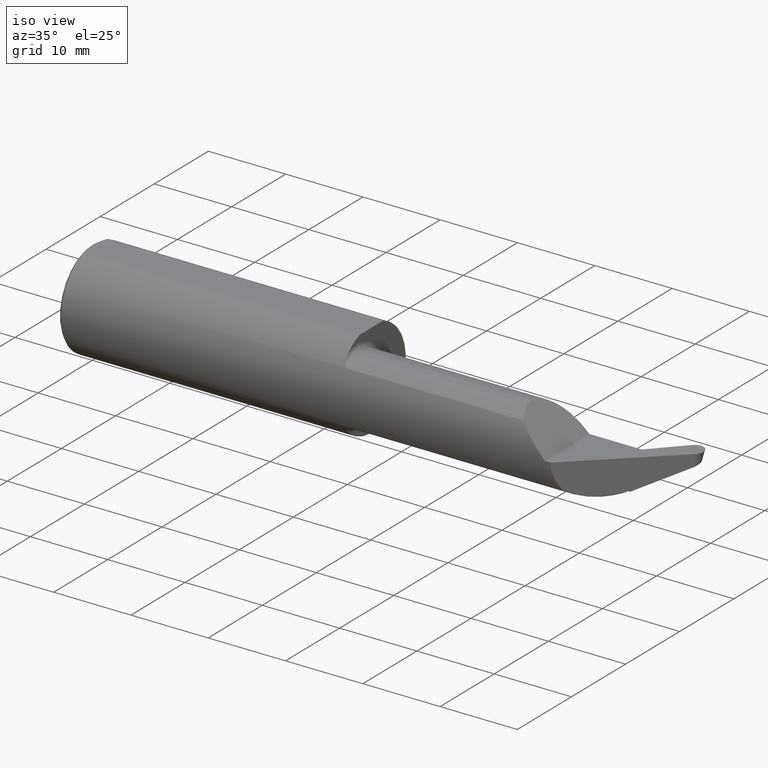
[diagram: clean part render]
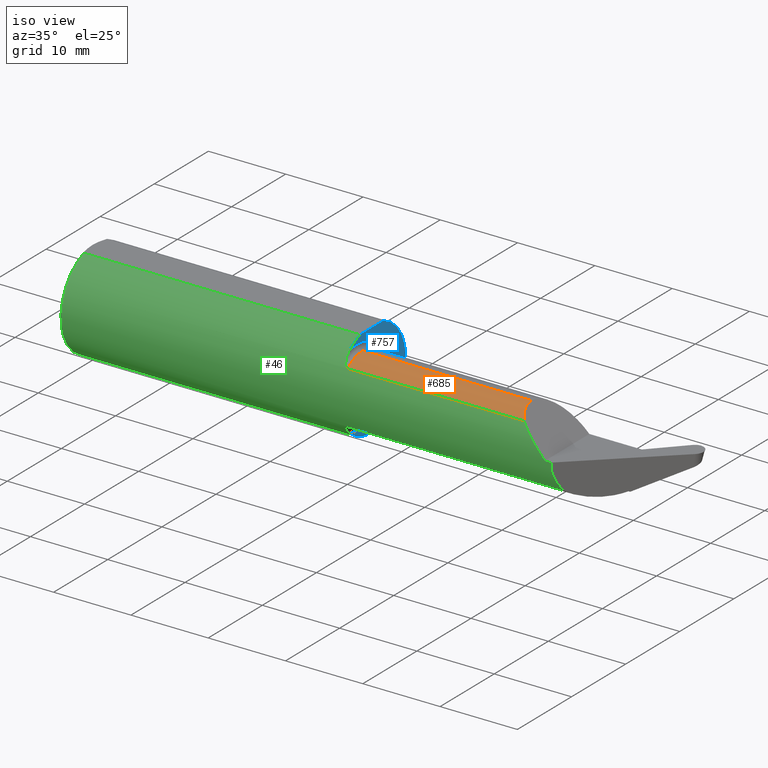
[diagram: same view with three faces highlighted in distinct colors, each labeled with its STEP entity id]
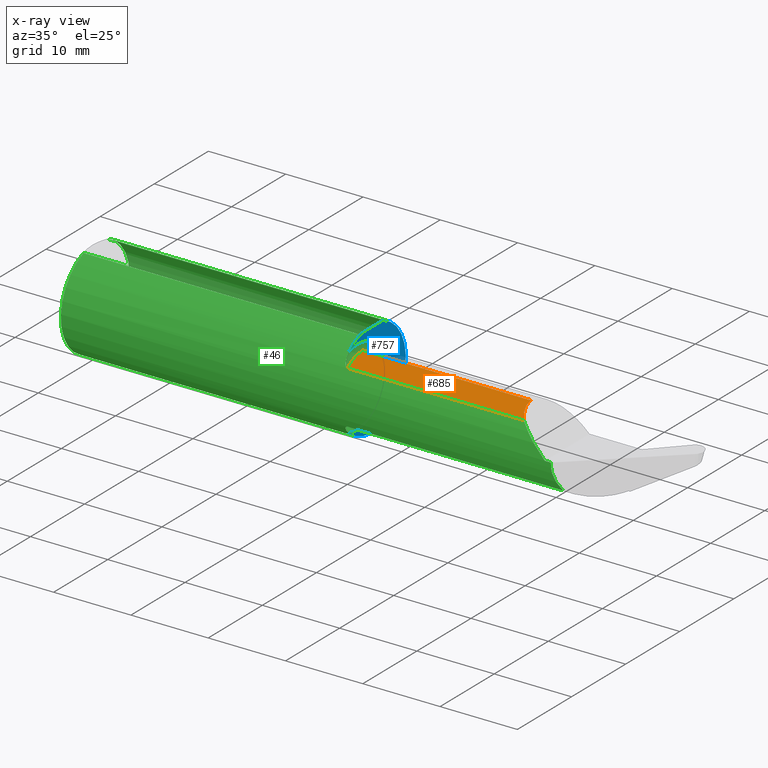
[diagram: x-ray of the same camera — body ghosted, the three highlighted faces saturated]
A machine part, iso view with three faces highlighted in distinct colors.
The next image is the same camera in x-ray (body ghosted, the three faces saturated) — at least one of them is partly hidden behind the body in this view.
Their STEP definitions:

[orange] entity #685 — the highlighted cylindrical surface (partial cylindrical patch) has radius 4.4196 mm, axis along (-1, -0, -0).
#25 = DIRECTION ( 'NONE',  ( 1.000000000000000000, 0.000000000000000000, 0.000000000000000000 ) ) ;
#70 = CARTESIAN_POINT ( 'NONE',  ( 1.446999999999999842, -0.09985000000000000819, 0.1739999999999987390 ) ) ;
#76 = CARTESIAN_POINT ( 'NONE',  ( 2.319901235500922088, -0.1793692571805432512, 0.1600987644990802261 ) ) ;
#103 = CARTESIAN_POINT ( 'NONE',  ( 2.097104927754681825, -0.2109115923885839516, 0.1339452227446421839 ) ) ;
#108 = DIRECTION ( 'NONE',  ( -1.000000000000000000, -0.000000000000000000, -0.000000000000000000 ) ) ;
#141 = CARTESIAN_POINT ( 'NONE',  ( 2.346054777255360158, -0.2109115923885840072, 0.1339452227446421284 ) ) ;
#156 = LINE ( 'NONE', #103, #694 ) ;
#161 = EDGE_CURVE ( 'NONE', #590, #360, #156, .T. ) ;
#211 = ORIENTED_EDGE ( 'NONE', *, *, #671, .T. ) ;
#252 = CARTESIAN_POINT ( 'NONE',  ( 1.446999999999999842, -0.09985000000000000819, 0.000000000000000000 ) ) ;
#283 = EDGE_CURVE ( 'NONE', #590, #367, #705, .T. ) ;
#295 = VERTEX_POINT ( 'NONE', #512 ) ;
#298 = VECTOR ( 'NONE', #542, 39.37007874015748143 ) ;
#299 = CARTESIAN_POINT ( 'NONE',  ( 1.421999999999999931, -0.09985000000000000819, 0.000000000000000000 ) ) ;
#356 =( BOUNDED_CURVE ( )  B_SPLINE_CURVE ( 3, ( #528, #76, #776, #524 ),
 .UNSPECIFIED., .F., .T. ) 
 B_SPLINE_CURVE_WITH_KNOTS ( ( 4, 4 ),
 ( 5.590916938044846241, 6.283185307179586232 ),
 .UNSPECIFIED. ) 
 CURVE ( )  GEOMETRIC_REPRESENTATION_ITEM ( )  RATIONAL_B_SPLINE_CURVE ( ( 1.000000000000000000, 0.9604608466326333138, 0.9604608466326333138, 1.000000000000000000 ) ) 
 REPRESENTATION_ITEM ( '' )  );
#360 = VERTEX_POINT ( 'NONE', #141 ) ;
#367 = VERTEX_POINT ( 'NONE', #70 ) ;
#370 = EDGE_CURVE ( 'NONE', #360, #295, #356, .T. ) ;
#421 = FACE_OUTER_BOUND ( 'NONE', #676, .T. ) ;
#439 = AXIS2_PLACEMENT_3D ( 'NONE', #252, #500, #502 ) ;
#490 = DIRECTION ( 'NONE',  ( 0.000000000000000000, 0.000000000000000000, 1.000000000000000000 ) ) ;
#496 = CARTESIAN_POINT ( 'NONE',  ( 1.446999999999999842, -0.2109115923885835353, 0.1339452227446417121 ) ) ;
#500 = DIRECTION ( 'NONE',  ( -1.000000000000000000, -0.000000000000000000, -0.000000000000000000 ) ) ;
#502 = DIRECTION ( 'NONE',  ( 0.000000000000000000, 0.000000000000000000, 1.000000000000000000 ) ) ;
#512 = CARTESIAN_POINT ( 'NONE',  ( 2.306000000000003602, -0.09985000000000000819, 0.1739999999999993496 ) ) ;
#524 = CARTESIAN_POINT ( 'NONE',  ( 2.306000000000003602, -0.09985000000000000819, 0.1739999999999993496 ) ) ;
#528 = CARTESIAN_POINT ( 'NONE',  ( 2.346054777255360158, -0.2109115923885840072, 0.1339452227446421284 ) ) ;
#542 = DIRECTION ( 'NONE',  ( -1.000000000000000000, -0.000000000000000000, -0.000000000000000000 ) ) ;
#577 = AXIS2_PLACEMENT_3D ( 'NONE', #299, #108, #490 ) ;
#590 = VERTEX_POINT ( 'NONE', #496 ) ;
#629 = ORIENTED_EDGE ( 'NONE', *, *, #161, .T. ) ;
#671 = EDGE_CURVE ( 'NONE', #295, #367, #675, .T. ) ;
#675 = LINE ( 'NONE', #741, #298 ) ;
#676 = EDGE_LOOP ( 'NONE', ( #690, #211, #804, #629 ) ) ;
#684 = CYLINDRICAL_SURFACE ( 'NONE', #577, 0.1739999999999993496 ) ;
#685 = ADVANCED_FACE ( 'NONE', ( #421 ), #684, .T. ) ;
#690 = ORIENTED_EDGE ( 'NONE', *, *, #370, .T. ) ;
#694 = VECTOR ( 'NONE', #25, 39.37007874015748143 ) ;
#705 = CIRCLE ( 'NONE', #439, 0.1739999999999987390 ) ;
#741 = CARTESIAN_POINT ( 'NONE',  ( 1.421999999999999931, -0.09985000000000000819, 0.1739999999999993496 ) ) ;
#776 = CARTESIAN_POINT ( 'NONE',  ( 2.306000000000003158, -0.1408247075240024737, 0.1739999999999993219 ) ) ;
#804 = ORIENTED_EDGE ( 'NONE', *, *, #283, .F. ) ;

[blue] entity #757 — the highlighted planar face has unit normal (1, 0, 0).
#6 = DIRECTION ( 'NONE',  ( 1.000000000000000000, 0.000000000000000000, 0.000000000000000000 ) ) ;
#23 = CARTESIAN_POINT ( 'NONE',  ( 1.421999999999999931, -0.1642165498247395994, -0.1883028073706252692 ) ) ;
#26 = ORIENTED_EDGE ( 'NONE', *, *, #461, .T. ) ;
#42 = CARTESIAN_POINT ( 'NONE',  ( 1.421999999999999931, -0.09984999999999999432, -0.1989999999999987612 ) ) ;
#48 = ORIENTED_EDGE ( 'NONE', *, *, #219, .T. ) ;
#51 = CARTESIAN_POINT ( 'NONE',  ( 1.421999999999999931, 0.08526722699841957076, 0.2348499999999999477 ) ) ;
#102 = CIRCLE ( 'NONE', #484, 0.2498499999999999888 ) ;
#128 = CARTESIAN_POINT ( 'NONE',  ( 1.421999999999999931, 0.000000000000000000, 0.000000000000000000 ) ) ;
#137 = DIRECTION ( 'NONE',  ( -1.000000000000000000, -0.000000000000000000, -0.000000000000000000 ) ) ;
#158 = VERTEX_POINT ( 'NONE', #401 ) ;
#164 = VERTEX_POINT ( 'NONE', #231 ) ;
#165 = DIRECTION ( 'NONE',  ( 1.000000000000000000, 0.000000000000000000, 0.000000000000000000 ) ) ;
#175 = CIRCLE ( 'NONE', #184, 0.1989999999999987612 ) ;
#184 = AXIS2_PLACEMENT_3D ( 'NONE', #220, #597, #730 ) ;
#186 = DIRECTION ( 'NONE',  ( 0.000000000000000000, 0.000000000000000000, 1.000000000000000000 ) ) ;
#202 = ORIENTED_EDGE ( 'NONE', *, *, #511, .T. ) ;
#218 = AXIS2_PLACEMENT_3D ( 'NONE', #371, #6, #713 ) ;
#219 = EDGE_CURVE ( 'NONE', #158, #667, #175, .T. ) ;
#220 = CARTESIAN_POINT ( 'NONE',  ( 1.421999999999999931, -0.09985000000000000819, 0.000000000000000000 ) ) ;
#229 = CIRCLE ( 'NONE', #570, 0.1989999999999987612 ) ;
#231 = CARTESIAN_POINT ( 'NONE',  ( 1.421999999999999931, -0.08526722699841958464, 0.2348499999999999477 ) ) ;
#240 = DIRECTION ( 'NONE',  ( 0.000000000000000000, -1.000000000000000000, 0.000000000000000000 ) ) ;
#244 = AXIS2_PLACEMENT_3D ( 'NONE', #736, #137, #796 ) ;
#251 = EDGE_CURVE ( 'NONE', #164, #437, #493, .T. ) ;
#256 = EDGE_CURVE ( 'NONE', #667, #347, #229, .T. ) ;
#262 = FACE_OUTER_BOUND ( 'NONE', #794, .T. ) ;
#270 = AXIS2_PLACEMENT_3D ( 'NONE', #128, #635, #702 ) ;
#271 = VERTEX_POINT ( 'NONE', #51 ) ;
#292 = CARTESIAN_POINT ( 'NONE',  ( 1.421999999999999931, 0.000000000000000000, 0.000000000000000000 ) ) ;
#300 = ORIENTED_EDGE ( 'NONE', *, *, #251, .T. ) ;
#301 = DIRECTION ( 'NONE',  ( 0.000000000000000000, 0.000000000000000000, -1.000000000000000000 ) ) ;
#317 = CIRCLE ( 'NONE', #244, 0.1989999999999987612 ) ;
#347 = VERTEX_POINT ( 'NONE', #23 ) ;
#366 = EDGE_CURVE ( 'NONE', #437, #158, #317, .T. ) ;
#371 = CARTESIAN_POINT ( 'NONE',  ( 1.421999999999999931, 0.09914999999999873914, 0.000000000000000000 ) ) ;
#373 = DIRECTION ( 'NONE',  ( -1.000000000000000000, -0.000000000000000000, -0.000000000000000000 ) ) ;
#401 = CARTESIAN_POINT ( 'NONE',  ( 1.421999999999999931, -0.09985000000000000819, 0.1989999999999987612 ) ) ;
#423 = CARTESIAN_POINT ( 'NONE',  ( 1.421999999999999931, 0.1499999999999999944, 0.2348499999999999477 ) ) ;
#437 = VERTEX_POINT ( 'NONE', #670 ) ;
#461 = EDGE_CURVE ( 'NONE', #347, #271, #102, .T. ) ;
#484 = AXIS2_PLACEMENT_3D ( 'NONE', #292, #165, #301 ) ;
#493 = CIRCLE ( 'NONE', #270, 0.2498499999999999888 ) ;
#511 = EDGE_CURVE ( 'NONE', #271, #164, #608, .T. ) ;
#568 = CARTESIAN_POINT ( 'NONE',  ( 1.421999999999999931, -0.09985000000000000819, 0.000000000000000000 ) ) ;
#570 = AXIS2_PLACEMENT_3D ( 'NONE', #568, #373, #186 ) ;
#597 = DIRECTION ( 'NONE',  ( -1.000000000000000000, -0.000000000000000000, -0.000000000000000000 ) ) ;
#608 = LINE ( 'NONE', #423, #695 ) ;
#635 = DIRECTION ( 'NONE',  ( 1.000000000000000000, 0.000000000000000000, 0.000000000000000000 ) ) ;
#667 = VERTEX_POINT ( 'NONE', #42 ) ;
#670 = CARTESIAN_POINT ( 'NONE',  ( 1.421999999999999931, -0.1642165498247395994, 0.1883028073706252692 ) ) ;
#695 = VECTOR ( 'NONE', #240, 39.37007874015748143 ) ;
#702 = DIRECTION ( 'NONE',  ( 0.000000000000000000, 0.000000000000000000, -1.000000000000000000 ) ) ;
#713 = DIRECTION ( 'NONE',  ( 0.000000000000000000, 0.000000000000000000, -1.000000000000000000 ) ) ;
#730 = DIRECTION ( 'NONE',  ( 0.000000000000000000, 0.000000000000000000, 1.000000000000000000 ) ) ;
#736 = CARTESIAN_POINT ( 'NONE',  ( 1.421999999999999931, -0.09985000000000000819, 0.000000000000000000 ) ) ;
#754 = PLANE ( 'NONE',  #218 ) ;
#757 = ADVANCED_FACE ( 'NONE', ( #262 ), #754, .T. ) ;
#794 = EDGE_LOOP ( 'NONE', ( #26, #202, #300, #829, #48, #820 ) ) ;
#796 = DIRECTION ( 'NONE',  ( 0.000000000000000000, 0.000000000000000000, 1.000000000000000000 ) ) ;
#820 = ORIENTED_EDGE ( 'NONE', *, *, #256, .T. ) ;
#829 = ORIENTED_EDGE ( 'NONE', *, *, #366, .T. ) ;

[green] entity #46 — the highlighted cylindrical surface (partial cylindrical patch) has radius 6.3462 mm, axis along (-1, -0, -0).
#2 = CARTESIAN_POINT ( 'NONE',  ( 2.508211166450760476, -0.2498500000000000443, -0.04776250763339680988 ) ) ;
#5 = AXIS2_PLACEMENT_3D ( 'NONE', #478, #603, #557 ) ;
#8 = CARTESIAN_POINT ( 'NONE',  ( 1.422000000000000597, -0.1692143377402382520, 0.1839442983303241075 ) ) ;
#15 = ORIENTED_EDGE ( 'NONE', *, *, #763, .T. ) ;
#17 = CARTESIAN_POINT ( 'NONE',  ( 1.439579013400958729, -0.2089922484211655385, 0.1369264698045204454 ) ) ;
#23 = CARTESIAN_POINT ( 'NONE',  ( 1.421999999999999931, -0.1642165498247395994, -0.1883028073706252692 ) ) ;
#25 = DIRECTION ( 'NONE',  ( 1.000000000000000000, 0.000000000000000000, 0.000000000000000000 ) ) ;
#29 = CARTESIAN_POINT ( 'NONE',  ( 2.480000000000000426, -0.2498499999999999888, -5.549066237130534971E-17 ) ) ;
#39 = LINE ( 'NONE', #489, #442 ) ;
#45 = CARTESIAN_POINT ( 'NONE',  ( 0.01500000000000188856, 0.08526722699841957076, 0.2348499999999999477 ) ) ;
#46 = ADVANCED_FACE ( 'NONE', ( #263 ), #643, .T. ) ;
#49 = DIRECTION ( 'NONE',  ( -1.000000000000000000, -0.000000000000000000, -0.000000000000000000 ) ) ;
#50 = ORIENTED_EDGE ( 'NONE', *, *, #237, .T. ) ;
#51 = CARTESIAN_POINT ( 'NONE',  ( 1.421999999999999931, 0.08526722699841957076, 0.2348499999999999477 ) ) ;
#52 = VERTEX_POINT ( 'NONE', #460 ) ;
#61 = CARTESIAN_POINT ( 'NONE',  ( 1.423856958242080806, -0.1832683170044314414, 0.1699454654953777566 ) ) ;
#62 = EDGE_CURVE ( 'NONE', #697, #527, #810, .T. ) ;
#63 = ORIENTED_EDGE ( 'NONE', *, *, #664, .F. ) ;
#67 = CARTESIAN_POINT ( 'NONE',  ( 1.422369308096891327, -0.1740236709404029136, 0.1794003879942955570 ) ) ;
#81 = CARTESIAN_POINT ( 'NONE',  ( 1.443666560440262758, -0.2105968497256135719, 0.1344424988095926921 ) ) ;
#84 = EDGE_CURVE ( 'NONE', #437, #590, #93, .T. ) ;
#93 = B_SPLINE_CURVE_WITH_KNOTS ( 'NONE', 3,
 ( #142, #8, #67, #61, #784, #205, #589, #513, #327, #17, #274, #81, #773, #336 ),
 .UNSPECIFIED., .F., .F.,
 ( 4, 2, 2, 2, 2, 2, 4 ),
 ( 0.0004288698157893197399, 0.0009336780968993453871, 0.001438486378009370872, 0.001943294659119398091, 0.002195698799674412460, 0.002321900869951926908, 0.002448102940229441790 ),
 .UNSPECIFIED. ) ;
#99 = CARTESIAN_POINT ( 'NONE',  ( 2.545554631339530971, -0.2109115923885839516, -0.1339452227446421839 ) ) ;
#102 = CIRCLE ( 'NONE', #484, 0.2498499999999999888 ) ;
#103 = CARTESIAN_POINT ( 'NONE',  ( 2.097104927754681825, -0.2109115923885839516, 0.1339452227446421839 ) ) ;
#115 = AXIS2_PLACEMENT_3D ( 'NONE', #714, #136, #396 ) ;
#118 = VERTEX_POINT ( 'NONE', #129 ) ;
#120 = CARTESIAN_POINT ( 'NONE',  ( 1.422000000000000597, -0.1743076965831615865, -0.1795024430660108472 ) ) ;
#126 = LINE ( 'NONE', #638, #775 ) ;
#128 = CARTESIAN_POINT ( 'NONE',  ( 1.421999999999999931, 0.000000000000000000, 0.000000000000000000 ) ) ;
#129 = CARTESIAN_POINT ( 'NONE',  ( 1.446999999999999842, -0.2109115923885835353, -0.1339452227446417121 ) ) ;
#131 = LINE ( 'NONE', #138, #260 ) ;
#136 = DIRECTION ( 'NONE',  ( -1.000000000000000000, -0.000000000000000000, -0.000000000000000000 ) ) ;
#138 = CARTESIAN_POINT ( 'NONE',  ( 3.000000000000000444, -0.08526722699841955688, 0.2348499999999999477 ) ) ;
#141 = CARTESIAN_POINT ( 'NONE',  ( 2.346054777255360158, -0.2109115923885840072, 0.1339452227446421284 ) ) ;
#142 = CARTESIAN_POINT ( 'NONE',  ( 1.421999999999999931, -0.1642165498247395994, 0.1883028073706252692 ) ) ;
#156 = LINE ( 'NONE', #103, #694 ) ;
#161 = EDGE_CURVE ( 'NONE', #590, #360, #156, .T. ) ;
#164 = VERTEX_POINT ( 'NONE', #231 ) ;
#165 = DIRECTION ( 'NONE',  ( 1.000000000000000000, 0.000000000000000000, 0.000000000000000000 ) ) ;
#173 = EDGE_CURVE ( 'NONE', #118, #347, #187, .T. ) ;
#176 = CARTESIAN_POINT ( 'NONE',  ( 2.386373634735574623, -0.2365171946451300189, 0.09362636526442749685 ) ) ;
#177 = ORIENTED_EDGE ( 'NONE', *, *, #466, .T. ) ;
#187 = B_SPLINE_CURVE_WITH_KNOTS ( 'NONE', 3,
 ( #282, #340, #482, #289, #744, #345, #214, #662, #351, #479, #120, #537 ),
 .UNSPECIFIED., .F., .F.,
 ( 4, 2, 2, 2, 2, 4 ),
 ( 1.963928090177221783E-07, 0.0001286476382168975333, 0.0002570988836247773356, 0.0005140013744405380787, 0.001027806356072059456, 0.002055416319335093538 ),
 .UNSPECIFIED. ) ;
#205 = CARTESIAN_POINT ( 'NONE',  ( 1.428161608761568946, -0.1960654850943063521, 0.1550025169876981246 ) ) ;
#208 =( BOUNDED_CURVE ( )  B_SPLINE_CURVE ( 3, ( #29, #815, #176, #428 ),
 .UNSPECIFIED., .F., .T. ) 
 B_SPLINE_CURVE_WITH_KNOTS ( ( 4, 4 ),
 ( 4.712388980384689674, 5.278202291926584522 ),
 .UNSPECIFIED. ) 
 CURVE ( )  GEOMETRIC_REPRESENTATION_ITEM ( )  RATIONAL_B_SPLINE_CURVE ( ( 1.000000000000000000, 0.9734987392630297665, 0.9734987392630297665, 1.000000000000000000 ) ) 
 REPRESENTATION_ITEM ( '' )  );
#214 = CARTESIAN_POINT ( 'NONE',  ( 1.434535956346823848, -0.2051861511868732224, -0.1425927214055004721 ) ) ;
#231 = CARTESIAN_POINT ( 'NONE',  ( 1.421999999999999931, -0.08526722699841958464, 0.2348499999999999477 ) ) ;
#234 = ORIENTED_EDGE ( 'NONE', *, *, #574, .T. ) ;
#237 = EDGE_CURVE ( 'NONE', #724, #477, #613, .T. ) ;
#251 = EDGE_CURVE ( 'NONE', #164, #437, #493, .T. ) ;
#260 = VECTOR ( 'NONE', #49, 39.37007874015748143 ) ;
#263 = FACE_OUTER_BOUND ( 'NONE', #569, .T. ) ;
#270 = AXIS2_PLACEMENT_3D ( 'NONE', #128, #635, #702 ) ;
#271 = VERTEX_POINT ( 'NONE', #51 ) ;
#274 = CARTESIAN_POINT ( 'NONE',  ( 1.440816232719195789, -0.2096312696626586314, 0.1359431843828213526 ) ) ;
#282 = CARTESIAN_POINT ( 'NONE',  ( 1.446999999999999842, -0.2109115923885835353, -0.1339452227446417121 ) ) ;
#289 = CARTESIAN_POINT ( 'NONE',  ( 1.440784743460165940, -0.2096175062667601507, -0.1359644531973572545 ) ) ;
#290 = CARTESIAN_POINT ( 'NONE',  ( 2.097104927754681825, -0.2109115923885839516, -0.1339452227446421839 ) ) ;
#292 = CARTESIAN_POINT ( 'NONE',  ( 1.421999999999999931, 0.000000000000000000, 0.000000000000000000 ) ) ;
#301 = DIRECTION ( 'NONE',  ( 0.000000000000000000, 0.000000000000000000, -1.000000000000000000 ) ) ;
#304 = EDGE_CURVE ( 'NONE', #527, #271, #126, .T. ) ;
#322 = DIRECTION ( 'NONE',  ( 0.000000000000000000, 0.000000000000000000, -1.000000000000000000 ) ) ;
#327 = CARTESIAN_POINT ( 'NONE',  ( 1.436292829746335320, -0.2068995363356213868, 0.1400856398677407522 ) ) ;
#336 = CARTESIAN_POINT ( 'NONE',  ( 1.446999999999999842, -0.2109115923885835353, 0.1339452227446417121 ) ) ;
#340 = CARTESIAN_POINT ( 'NONE',  ( 1.445283494997617435, -0.2109115923885847843, -0.1339452227446408794 ) ) ;
#345 = CARTESIAN_POINT ( 'NONE',  ( 1.436241547894474557, -0.2068583287092652934, -0.1401468808397427213 ) ) ;
#347 = VERTEX_POINT ( 'NONE', #23 ) ;
#351 = CARTESIAN_POINT ( 'NONE',  ( 1.428143744967449447, -0.1960236850867127512, -0.1550539425161153451 ) ) ;
#352 = CARTESIAN_POINT ( 'NONE',  ( 2.480000000000000426, -0.2498499999999999888, -5.549066237130534971E-17 ) ) ;
#357 = DIRECTION ( 'NONE',  ( -1.000000000000000000, -0.000000000000000000, -0.000000000000000000 ) ) ;
#360 = VERTEX_POINT ( 'NONE', #141 ) ;
#372 = ORIENTED_EDGE ( 'NONE', *, *, #304, .T. ) ;
#392 = ORIENTED_EDGE ( 'NONE', *, *, #251, .F. ) ;
#396 = DIRECTION ( 'NONE',  ( 0.000000000000000000, 0.000000000000000000, 1.000000000000000000 ) ) ;
#403 = ORIENTED_EDGE ( 'NONE', *, *, #173, .F. ) ;
#419 = CARTESIAN_POINT ( 'NONE',  ( 2.510656778664930311, -0.2498500000000000998, 9.070589041463373428E-17 ) ) ;
#428 = CARTESIAN_POINT ( 'NONE',  ( 2.346054777255360158, -0.2109115923885840072, 0.1339452227446421284 ) ) ;
#430 = ORIENTED_EDGE ( 'NONE', *, *, #161, .F. ) ;
#436 = CARTESIAN_POINT ( 'NONE',  ( 2.510656778664930311, -0.2498500000000000998, 9.070589041463373428E-17 ) ) ;
#437 = VERTEX_POINT ( 'NONE', #670 ) ;
#442 = VECTOR ( 'NONE', #357, 39.37007874015748143 ) ;
#443 = VECTOR ( 'NONE', #619, 39.37007874015748143 ) ;
#445 = DIRECTION ( 'NONE',  ( 1.000000000000000000, 0.000000000000000000, 0.000000000000000000 ) ) ;
#460 = CARTESIAN_POINT ( 'NONE',  ( 0.01500000000000188856, -0.08526722699841957076, 0.2348499999999999477 ) ) ;
#461 = EDGE_CURVE ( 'NONE', #347, #271, #102, .T. ) ;
#466 = EDGE_CURVE ( 'NONE', #52, #697, #605, .T. ) ;
#477 = VERTEX_POINT ( 'NONE', #419 ) ;
#478 = CARTESIAN_POINT ( 'NONE',  ( 0.01500000000000188856, 0.000000000000000000, 0.000000000000000000 ) ) ;
#479 = CARTESIAN_POINT ( 'NONE',  ( 1.423399331548896196, -0.1835726712742186406, -0.1699824922758491619 ) ) ;
#482 = CARTESIAN_POINT ( 'NONE',  ( 1.443640240609051828, -0.2105909676090328142, -0.1344517602273873069 ) ) ;
#484 = AXIS2_PLACEMENT_3D ( 'NONE', #292, #165, #301 ) ;
#489 = CARTESIAN_POINT ( 'NONE',  ( 3.000000000000000444, -0.2498499999999999333, -5.549066237130534971E-17 ) ) ;
#493 = CIRCLE ( 'NONE', #270, 0.2498499999999999888 ) ;
#496 = CARTESIAN_POINT ( 'NONE',  ( 1.446999999999999842, -0.2109115923885835353, 0.1339452227446417121 ) ) ;
#504 = ORIENTED_EDGE ( 'NONE', *, *, #461, .F. ) ;
#505 = AXIS2_PLACEMENT_3D ( 'NONE', #652, #727, #322 ) ;
#513 = CARTESIAN_POINT ( 'NONE',  ( 1.434582689968705971, -0.2052357213566644023, 0.1425217524573930139 ) ) ;
#527 = VERTEX_POINT ( 'NONE', #45 ) ;
#537 = CARTESIAN_POINT ( 'NONE',  ( 1.421999999999999931, -0.1642165498247395994, -0.1883028073706252692 ) ) ;
#548 = EDGE_CURVE ( 'NONE', #477, #601, #39, .T. ) ;
#557 = DIRECTION ( 'NONE',  ( 0.000000000000000000, 0.000000000000000000, -1.000000000000000000 ) ) ;
#558 = LINE ( 'NONE', #290, #443 ) ;
#569 = EDGE_LOOP ( 'NONE', ( #63, #50, #742, #234, #430, #707, #392, #15, #177, #808, #372, #504, #403 ) ) ;
#574 = EDGE_CURVE ( 'NONE', #601, #360, #208, .T. ) ;
#589 = CARTESIAN_POINT ( 'NONE',  ( 1.430171543247811705, -0.1999759995858487183, 0.1499037593488166398 ) ) ;
#590 = VERTEX_POINT ( 'NONE', #496 ) ;
#601 = VERTEX_POINT ( 'NONE', #352 ) ;
#603 = DIRECTION ( 'NONE',  ( 1.000000000000000000, -0.000000000000000000, -0.000000000000000000 ) ) ;
#605 = CIRCLE ( 'NONE', #5, 0.2498499999999999888 ) ;
#613 =( BOUNDED_CURVE ( )  B_SPLINE_CURVE ( 3, ( #630, #822, #2, #436 ),
 .UNSPECIFIED., .F., .T. ) 
 B_SPLINE_CURVE_WITH_KNOTS ( ( 4, 4 ),
 ( 5.765083885558844656, 6.330897197100739504 ),
 .UNSPECIFIED. ) 
 CURVE ( )  GEOMETRIC_REPRESENTATION_ITEM ( )  RATIONAL_B_SPLINE_CURVE ( ( 1.000000000000000000, 0.9734987392630297665, 0.9734987392630297665, 1.000000000000000000 ) ) 
 REPRESENTATION_ITEM ( '' )  );
#619 = DIRECTION ( 'NONE',  ( -1.000000000000000000, -0.000000000000000000, -0.000000000000000000 ) ) ;
#630 = CARTESIAN_POINT ( 'NONE',  ( 2.545554631339530971, -0.2109115923885839516, -0.1339452227446421839 ) ) ;
#635 = DIRECTION ( 'NONE',  ( 1.000000000000000000, 0.000000000000000000, 0.000000000000000000 ) ) ;
#638 = CARTESIAN_POINT ( 'NONE',  ( 3.000000000000000444, 0.08526722699841955688, 0.2348499999999999477 ) ) ;
#643 = CYLINDRICAL_SURFACE ( 'NONE', #115, 0.2498499999999999888 ) ;
#652 = CARTESIAN_POINT ( 'NONE',  ( 0.01500000000000188856, 0.000000000000000000, 0.000000000000000000 ) ) ;
#662 = CARTESIAN_POINT ( 'NONE',  ( 1.430165546287361478, -0.1999563293643390194, -0.1499285236170100066 ) ) ;
#664 = EDGE_CURVE ( 'NONE', #724, #118, #558, .T. ) ;
#670 = CARTESIAN_POINT ( 'NONE',  ( 1.421999999999999931, -0.1642165498247395994, 0.1883028073706252692 ) ) ;
#694 = VECTOR ( 'NONE', #25, 39.37007874015748143 ) ;
#697 = VERTEX_POINT ( 'NONE', #812 ) ;
#702 = DIRECTION ( 'NONE',  ( 0.000000000000000000, 0.000000000000000000, -1.000000000000000000 ) ) ;
#707 = ORIENTED_EDGE ( 'NONE', *, *, #84, .F. ) ;
#714 = CARTESIAN_POINT ( 'NONE',  ( 3.000000000000000444, 0.000000000000000000, 0.000000000000000000 ) ) ;
#724 = VERTEX_POINT ( 'NONE', #99 ) ;
#727 = DIRECTION ( 'NONE',  ( 1.000000000000000000, -0.000000000000000000, -0.000000000000000000 ) ) ;
#742 = ORIENTED_EDGE ( 'NONE', *, *, #548, .T. ) ;
#744 = CARTESIAN_POINT ( 'NONE',  ( 1.439537473186052408, -0.2089699405038920599, -0.1369606145290488408 ) ) ;
#763 = EDGE_CURVE ( 'NONE', #164, #52, #131, .T. ) ;
#773 = CARTESIAN_POINT ( 'NONE',  ( 1.445296348002434117, -0.2109115923885848676, 0.1339452227446407684 ) ) ;
#775 = VECTOR ( 'NONE', #445, 39.37007874015748143 ) ;
#784 = CARTESIAN_POINT ( 'NONE',  ( 1.424978594482057215, -0.1877222700471141703, 0.1650084968907530869 ) ) ;
#808 = ORIENTED_EDGE ( 'NONE', *, *, #62, .T. ) ;
#810 = CIRCLE ( 'NONE', #505, 0.2498499999999999888 ) ;
#812 = CARTESIAN_POINT ( 'NONE',  ( 0.01500000000000188856, 0.000000000000000000, -0.2498499999999999888 ) ) ;
#815 = CARTESIAN_POINT ( 'NONE',  ( 2.432237492366604137, -0.2498499999999999888, 0.04776250763339683070 ) ) ;
#822 = CARTESIAN_POINT ( 'NONE',  ( 2.520160455226425622, -0.2365171946451299911, -0.09362636526442749685 ) ) ;